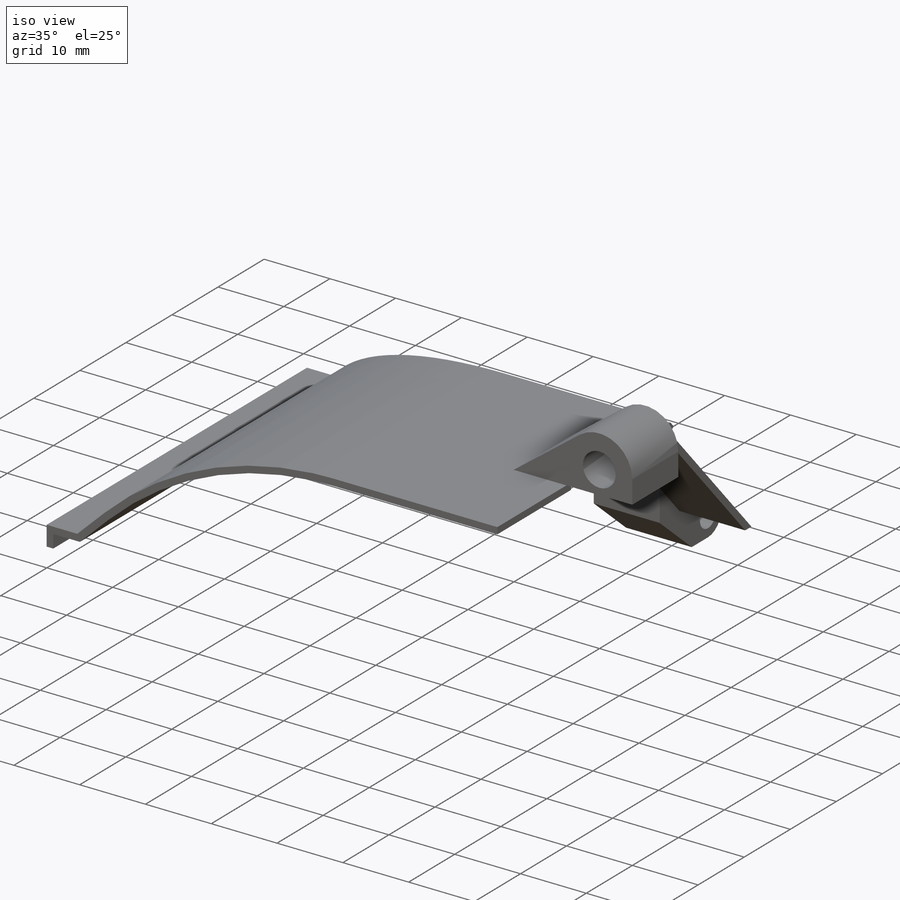
[diagram: iso view]
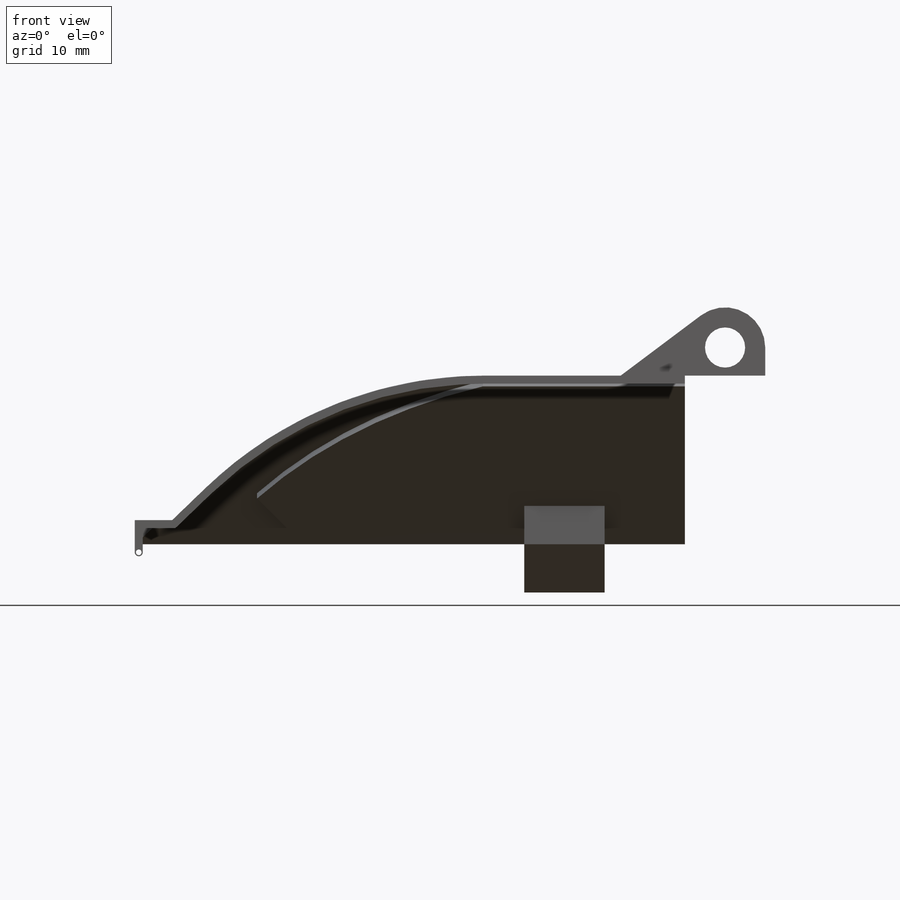
[diagram: front view]
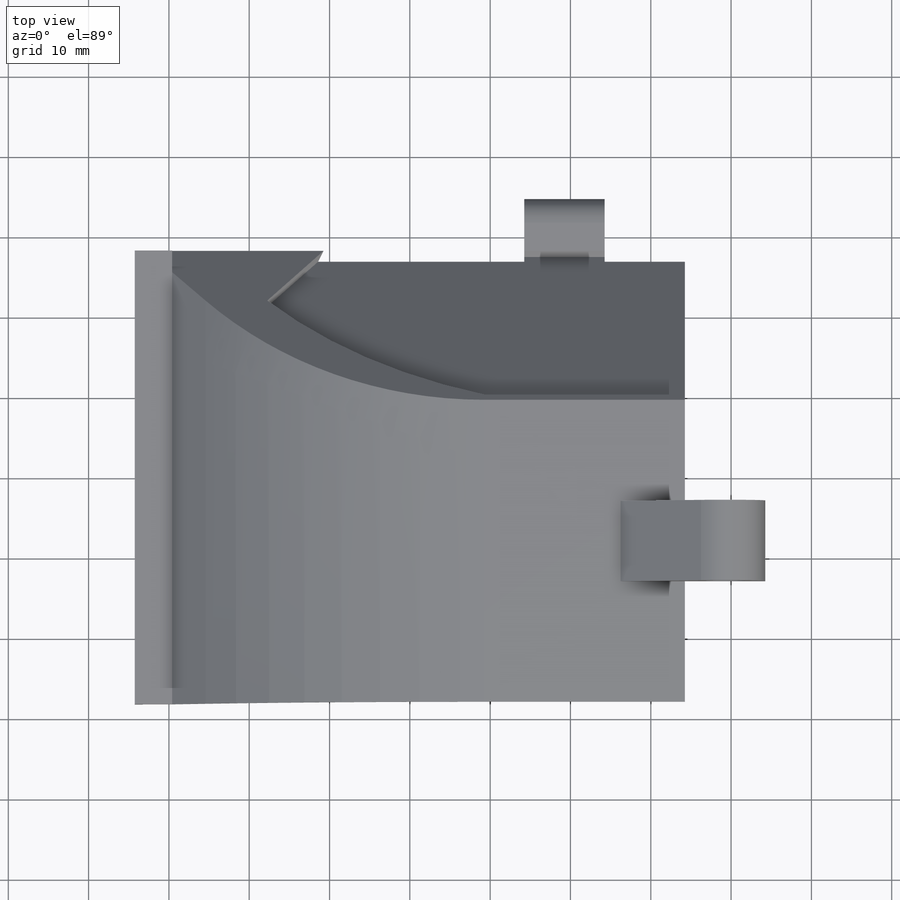
[diagram: top view]
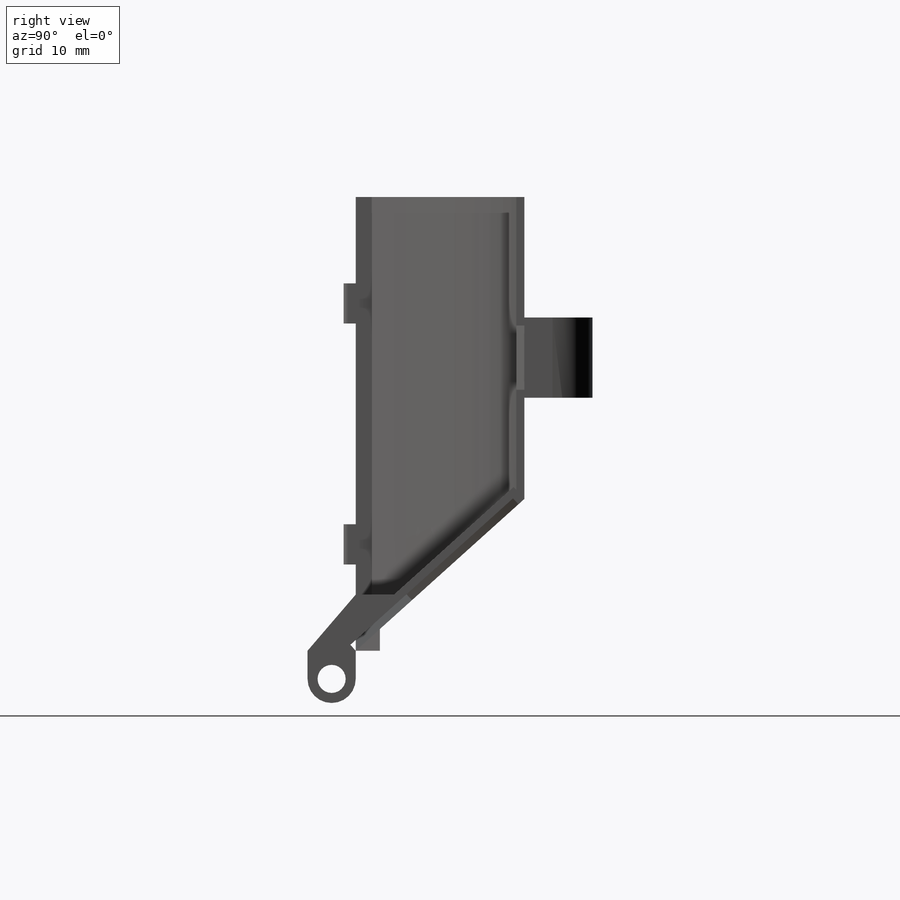
[diagram: right view]
SOLIDWORKS PART (.sldprt)
format: sldprt  version: not decoded by parser v0  size: 560,128 bytes
history: native  units: mm
features: sketch x12, extrude x6, cut_extrude x5, plane x4, material x1, shell x1, mirror x1 (+13 scaffold rows collapsed)
feature tree (43):
  scaffold x13  (default folders/planes/origin — collapsed)
  material  "Material <not specified>"
  sketch  "Sketch1"  dims[D3=14.0mm D1=56.5mm D2=68.5mm]
  extrude  "Boss-Extrude1"  Depth=3mm
  sketch  "Sketch2"  dims[c1.D2=50.0mm c1.D1=21.0mm c1.D3=4.0mm c1.D4=25.0mm c2.D1=21.0mm]
  extrude  "Boss-Extrude2"  [1 undecoded]
  sketch  "Sketch12"  dims[c1.D1=3.0mm c1.D2=8.0mm c1.D3=~31.698703mm c2.D3=110.0deg c2.D2=~31.698703mm c3.D2=20.0deg c4.D2=~34.690154mm c5.D2=110.0deg c5.D3=14.0mm]
  plane  "Plane1"  Offset=20mm
  sketch  "Sketch4"  dims[c1.D1=5.0mm c1.D2=5.0mm c2.D1=5.0mm c2.D2=7.0mm c2.D3=3.5mm c3.D2=5.0mm c3.D3=3.5mm c3.D4=10.0mm c4.D2=34.25mm c4.D3=~4.983346mm c4.D4=~9.983346mm c4.D5=~14.983346mm c4.D6=~19.983346mm c4.D7=~22.989679mm c4.D8=~24.983346mm c4.D9=~33.25899mm c5.D3=~4.983346mm c5.D4=~9.983346mm c5.D5=~0.338623mm c5.D6=~4.333866mm c5.D8=~3.393567mm c6.D5=~0.338623mm c6.D2=3.5mm c6.D3=10.0mm c6.D4=5.0mm]
  extrude  "Boss-Extrude4"  Depth=10mm
  sketch  "Sketch5"  dims[D1=5.0mm]
  cut_extrude  "Cut-Extrude1"  [1 undecoded]
  plane  "Plane2"  Offset=15mm
  plane  "Plane3"  Offset=15mm
  sketch  "Sketch9"  dims[c1.D2=3.0mm c1.D1=3.5mm c1.D3=6.5mm c1.D4=~9.552487mm c2.D3=6.5mm c3.D3=45.0deg c4.D3=7.0mm]
  extrude  "Boss-Extrude6"  Depth=10mm
  sketch  "Sketch11"  dims[c1.D1=18.0mm c2.D1=42.0deg c3.D1=21.0mm c4.D1=42.0deg]
  cut_extrude  "Cut-Extrude4"  [1 undecoded]
  sketch  "Sketch10"  dims[D1=3.5mm D2=3.5mm]
  cut_extrude  "Cut-Extrude3"  [1 undecoded]
  plane  "Plane4"
  sketch  "Sketch13"  dims[c1.D4=60.0mm c1.D1=25.0mm c1.D2=45.0mm c1.D3=14.0mm c2.D4=6.5mm c2.D5=~19.830372mm c2.D6=~30.277776mm c2.D7=~59.328899mm c3.D5=7.0mm c3.D3=1.0mm]
  cut_extrude  "Cut-Extrude5"  Depth=1mm
  shell  "Shell2"  Thickness=1mm
  sketch  "Sketch6"  dims[c1.D1=3.0mm c1.D2=4.0mm c2.D1=1.0mm]
  extrude  "Boss-Extrude5"  Depth=5mm
  sketch  "Sketch7"  dims[c1.D1=2.5mm c1.D2=2.5mm c2.D1=0.5mm c2.D2=1.4mm c3.D1=0.15mm]
  cut_extrude  "Cut-Extrude2"  [1 undecoded]
  mirror  "Mirror1"
  sketch  "Sketch16"  dims[D1=0.0mm]
  extrude  "Boss-Extrude7"  [1 undecoded]
decode coverage: 18 of 25 modeling features carry decoded parameters
note: ~ marks probable driven/reference dimensions
note: 6 parameter values undecoded
summary: no parameter record found for 6 features
note: suppression state not decoded; provenance and decode notes live in map.json
